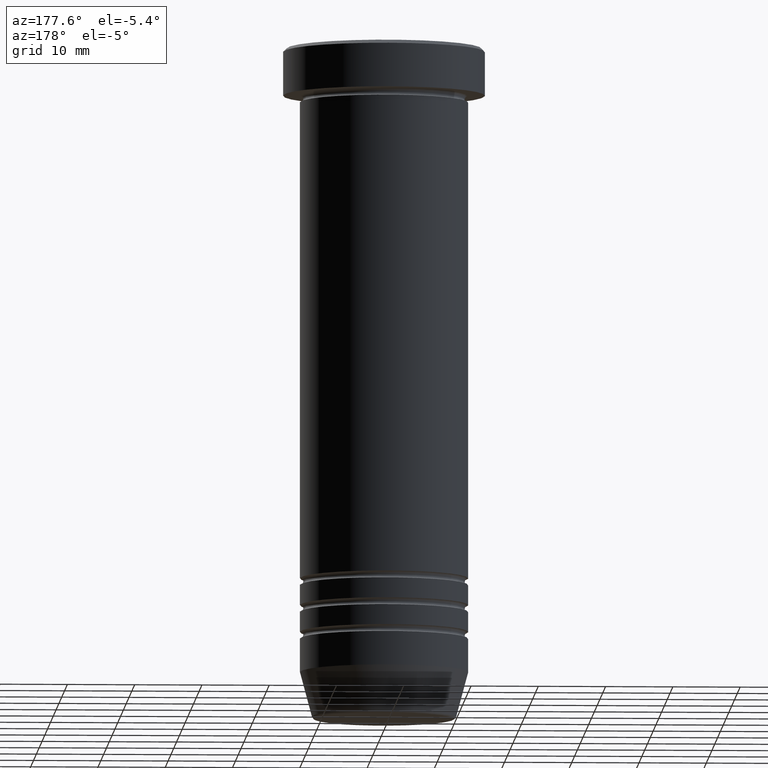
[diagram: clean part render]
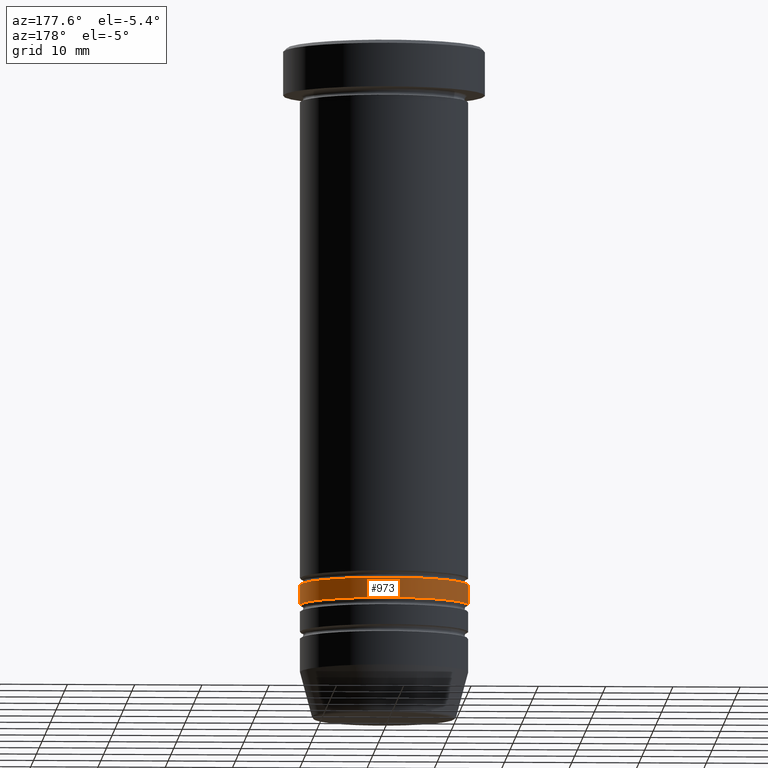
[diagram: same view with one face highlighted and labeled with its STEP entity id]
A machine part, auxiliary view. The second image highlights one B-rep face of the part: STEP entity #973.
In plain terms, the highlighted cylindrical surface (partial cylindrical patch) has radius 12.5 mm, axis along (-0, -0, 1).
Its self-contained STEP definition (entity closure, byte-faithful):
#3 = EDGE_CURVE ( 'NONE', #117, #323, #776, .T. ) ;
#94 = ORIENTED_EDGE ( 'NONE', *, *, #691, .F. ) ;
#115 = DIRECTION ( 'NONE',  ( 1.000000000000000000, 0.000000000000000000, 0.000000000000000000 ) ) ;
#117 = VERTEX_POINT ( 'NONE', #736 ) ;
#198 = VECTOR ( 'NONE', #1045, 1000.000000000000000 ) ;
#200 = AXIS2_PLACEMENT_3D ( 'NONE', #380, #1023, #115 ) ;
#210 = EDGE_CURVE ( 'NONE', #817, #488, #852, .T. ) ;
#257 = DIRECTION ( 'NONE',  ( 1.000000000000000000, 0.000000000000000000, 0.000000000000000000 ) ) ;
#293 = CARTESIAN_POINT ( 'NONE',  ( 12.50000000000000000, 0.000000000000000000, 0.000000000000000000 ) ) ;
#307 = LINE ( 'NONE', #293, #855 ) ;
#323 = VERTEX_POINT ( 'NONE', #819 ) ;
#380 = CARTESIAN_POINT ( 'NONE',  ( 0.000000000000000000, 0.000000000000000000, 0.000000000000000000 ) ) ;
#404 = CARTESIAN_POINT ( 'NONE',  ( -12.50000000000000000, 1.530808498934191521E-15, -80.00000000000000000 ) ) ;
#429 = CARTESIAN_POINT ( 'NONE',  ( 0.000000000000000000, 0.000000000000000000, -82.99999999999998579 ) ) ;
#439 = ORIENTED_EDGE ( 'NONE', *, *, #3, .T. ) ;
#488 = VERTEX_POINT ( 'NONE', #404 ) ;
#534 = CYLINDRICAL_SURFACE ( 'NONE', #200, 12.50000000000000000 ) ;
#540 = EDGE_LOOP ( 'NONE', ( #439, #874, #1006, #94 ) ) ;
#592 = AXIS2_PLACEMENT_3D ( 'NONE', #429, #753, #257 ) ;
#634 = EDGE_CURVE ( 'NONE', #323, #488, #1026, .T. ) ;
#691 = EDGE_CURVE ( 'NONE', #117, #817, #307, .T. ) ;
#712 = CARTESIAN_POINT ( 'NONE',  ( 0.000000000000000000, 0.000000000000000000, -80.00000000000000000 ) ) ;
#736 = CARTESIAN_POINT ( 'NONE',  ( 12.49999999999999822, 0.000000000000000000, -82.99999999999998579 ) ) ;
#753 = DIRECTION ( 'NONE',  ( -0.000000000000000000, -0.000000000000000000, 1.000000000000000000 ) ) ;
#776 = CIRCLE ( 'NONE', #592, 12.49999999999999822 ) ;
#817 = VERTEX_POINT ( 'NONE', #846 ) ;
#819 = CARTESIAN_POINT ( 'NONE',  ( -12.49999999999999822, 1.530808498934191324E-15, -82.99999999999998579 ) ) ;
#846 = CARTESIAN_POINT ( 'NONE',  ( 12.50000000000000000, 0.000000000000000000, -80.00000000000000000 ) ) ;
#852 = CIRCLE ( 'NONE', #1003, 12.50000000000000000 ) ;
#855 = VECTOR ( 'NONE', #946, 1000.000000000000000 ) ;
#874 = ORIENTED_EDGE ( 'NONE', *, *, #634, .T. ) ;
#946 = DIRECTION ( 'NONE',  ( -0.000000000000000000, -0.000000000000000000, 1.000000000000000000 ) ) ;
#962 = DIRECTION ( 'NONE',  ( 1.000000000000000000, 0.000000000000000000, 0.000000000000000000 ) ) ;
#973 = ADVANCED_FACE ( 'NONE', ( #1040 ), #534, .T. ) ;
#1003 = AXIS2_PLACEMENT_3D ( 'NONE', #712, #1044, #962 ) ;
#1006 = ORIENTED_EDGE ( 'NONE', *, *, #210, .F. ) ;
#1023 = DIRECTION ( 'NONE',  ( -0.000000000000000000, -0.000000000000000000, 1.000000000000000000 ) ) ;
#1026 = LINE ( 'NONE', #1030, #198 ) ;
#1030 = CARTESIAN_POINT ( 'NONE',  ( -12.50000000000000000, 1.530808498934191521E-15, 0.000000000000000000 ) ) ;
#1040 = FACE_OUTER_BOUND ( 'NONE', #540, .T. ) ;
#1044 = DIRECTION ( 'NONE',  ( -0.000000000000000000, -0.000000000000000000, 1.000000000000000000 ) ) ;
#1045 = DIRECTION ( 'NONE',  ( -0.000000000000000000, -0.000000000000000000, 1.000000000000000000 ) ) ;